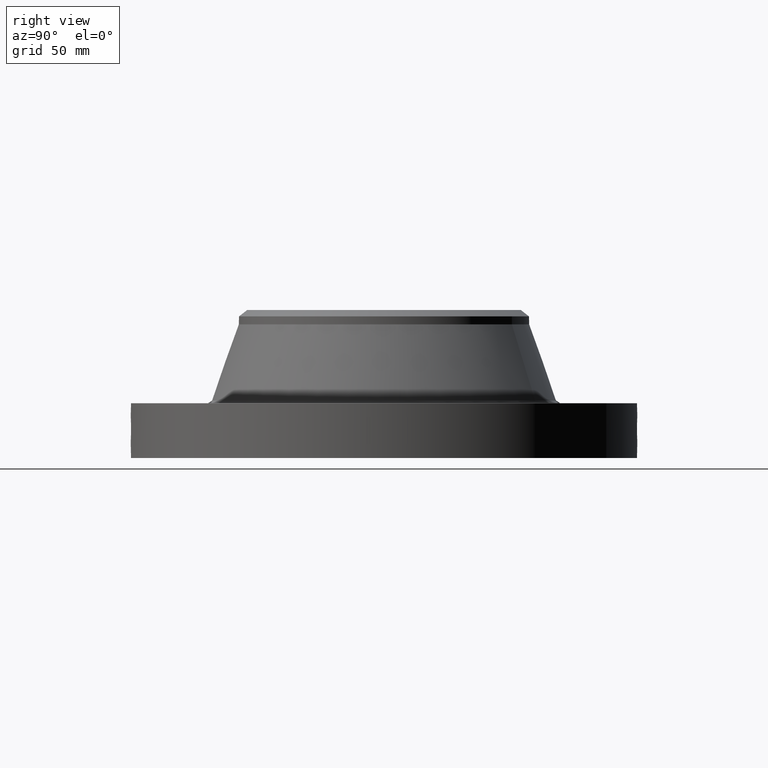
[diagram: clean part render]
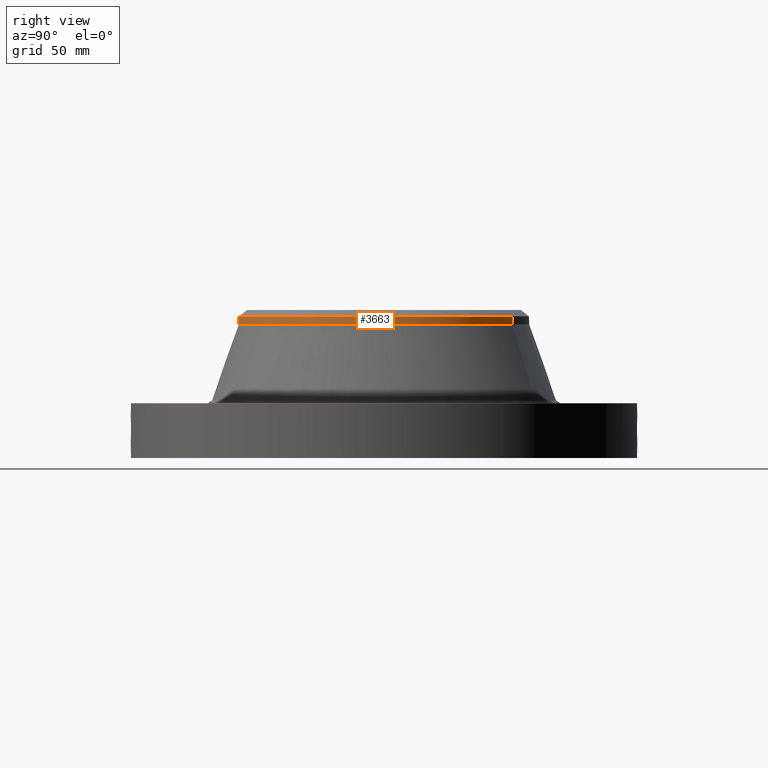
[diagram: same view with one face highlighted and labeled with its STEP entity id]
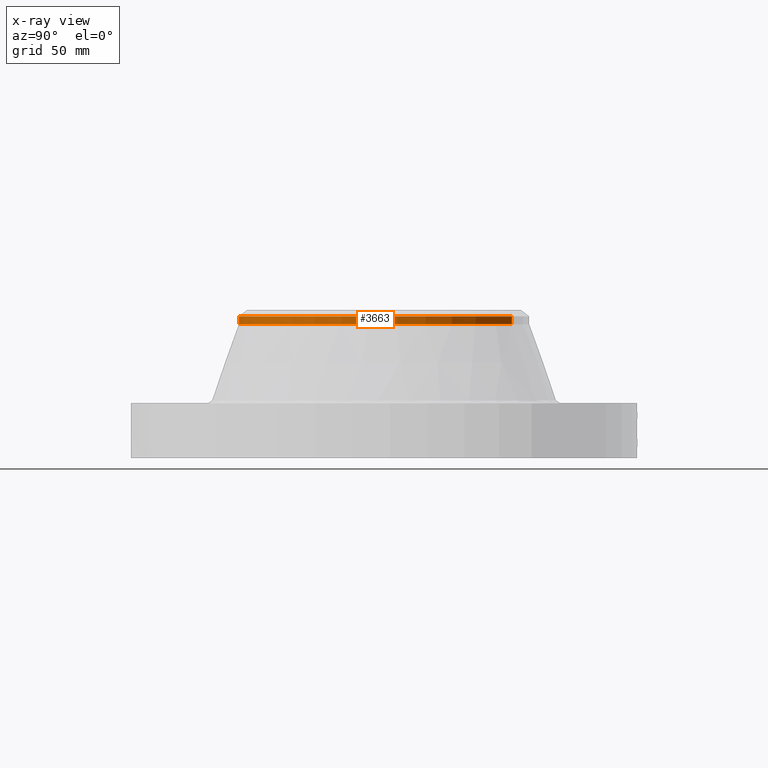
[diagram: x-ray of the same camera — body ghosted, the highlighted face saturated]
A machine part, right view. The second image highlights one B-rep face of the part: STEP entity #3663.
The next image is the same camera in x-ray: the body ghosted, the highlighted face saturated — about 0% of this face is hidden behind the body in this view.
In plain terms, the highlighted cylindrical surface (partial cylindrical patch) has radius 109.601 mm, axis along (0, 0, -1).
Its self-contained STEP definition (entity closure, byte-faithful):
#2847=AXIS2_PLACEMENT_3D('Circle Axis2P3D',#2845,#2846,$) ;
#3302=AXIS2_PLACEMENT_3D('Circle Axis2P3D',#3300,#3301,$) ;
#3315=AXIS2_PLACEMENT_3D('Circle Axis2P3D',#3313,#3314,$) ;
#3644=AXIS2_PLACEMENT_3D('Cylinder Axis2P3D',#3641,#3642,#3643) ;
#2842=CARTESIAN_POINT('Vertex',(2.06872119909,3.78676875457,4.01520136785)) ;
#2845=CARTESIAN_POINT('Axis2P3D Location',(0.,0.,4.01520136785)) ;
#2849=CARTESIAN_POINT('Vertex',(-2.06872119909,-3.78676875457,4.01520136785)) ;
#3283=CARTESIAN_POINT('Vertex',(2.06872119909,-3.78676875457,4.25142184029)) ;
#3297=CARTESIAN_POINT('Vertex',(-2.06872119909,-3.78676875457,4.25142184029)) ;
#3300=CARTESIAN_POINT('Axis2P3D Location',(0.,0.,4.25142184029)) ;
#3313=CARTESIAN_POINT('Axis2P3D Location',(0.,0.,4.25142184029)) ;
#3317=CARTESIAN_POINT('Vertex',(2.06872119909,3.78676875457,4.25142184029)) ;
#3641=CARTESIAN_POINT('Axis2P3D Location',(0.,0.,2.25000000001)) ;
#3646=CARTESIAN_POINT('Line Origine',(-2.06872119909,-3.78676875457,4.13331160407)) ;
#3651=CARTESIAN_POINT('Line Origine',(2.06872119909,3.78676875457,4.13331160407)) ;
#2846=DIRECTION('Axis2P3D Direction',(0.,0.,-0.0393700787402)) ;
#3301=DIRECTION('Axis2P3D Direction',(0.,0.,-0.0393700787402)) ;
#3314=DIRECTION('Axis2P3D Direction',(0.,0.,-0.0393700787402)) ;
#3642=DIRECTION('Axis2P3D Direction',(0.,0.,-0.0393700787402)) ;
#3643=DIRECTION('Axis2P3D XDirection',(-0.0188750212049,-0.0345504945626,0.)) ;
#3647=DIRECTION('Vector Direction',(0.,0.,-0.0393700787402)) ;
#3652=DIRECTION('Vector Direction',(0.,0.,-0.0393700787402)) ;
#3648=VECTOR('Line Direction',#3647,0.0393700787402) ;
#3653=VECTOR('Line Direction',#3652,0.0393700787402) ;
#3657=ORIENTED_EDGE('',*,*,#3650,.F.) ;
#3658=ORIENTED_EDGE('',*,*,#2851,.F.) ;
#3659=ORIENTED_EDGE('',*,*,#3655,.T.) ;
#3660=ORIENTED_EDGE('',*,*,#3319,.F.) ;
#3661=ORIENTED_EDGE('',*,*,#3304,.T.) ;
#3663=ADVANCED_FACE('PartBody',(#3662),#3645,.T.) ;
#2848=CIRCLE('generated circle',#2847,4.31500000002) ;
#3303=CIRCLE('generated circle',#3302,4.31500000002) ;
#3316=CIRCLE('generated circle',#3315,4.31500000002) ;
#3645=CYLINDRICAL_SURFACE('generated cylinder',#3644,4.31500000002) ;
#2851=EDGE_CURVE('',#2843,#2850,#2848,.T.) ;
#3304=EDGE_CURVE('',#3284,#3298,#3303,.T.) ;
#3319=EDGE_CURVE('',#3284,#3318,#3316,.F.) ;
#3650=EDGE_CURVE('',#2850,#3298,#3649,.F.) ;
#3655=EDGE_CURVE('',#2843,#3318,#3654,.F.) ;
#3656=EDGE_LOOP('',(#3657,#3658,#3659,#3660,#3661)) ;
#3662=FACE_OUTER_BOUND('',#3656,.T.) ;
#3649=LINE('Line',#3646,#3648) ;
#3654=LINE('Line',#3651,#3653) ;
#2843=VERTEX_POINT('',#2842) ;
#2850=VERTEX_POINT('',#2849) ;
#3284=VERTEX_POINT('',#3283) ;
#3298=VERTEX_POINT('',#3297) ;
#3318=VERTEX_POINT('',#3317) ;